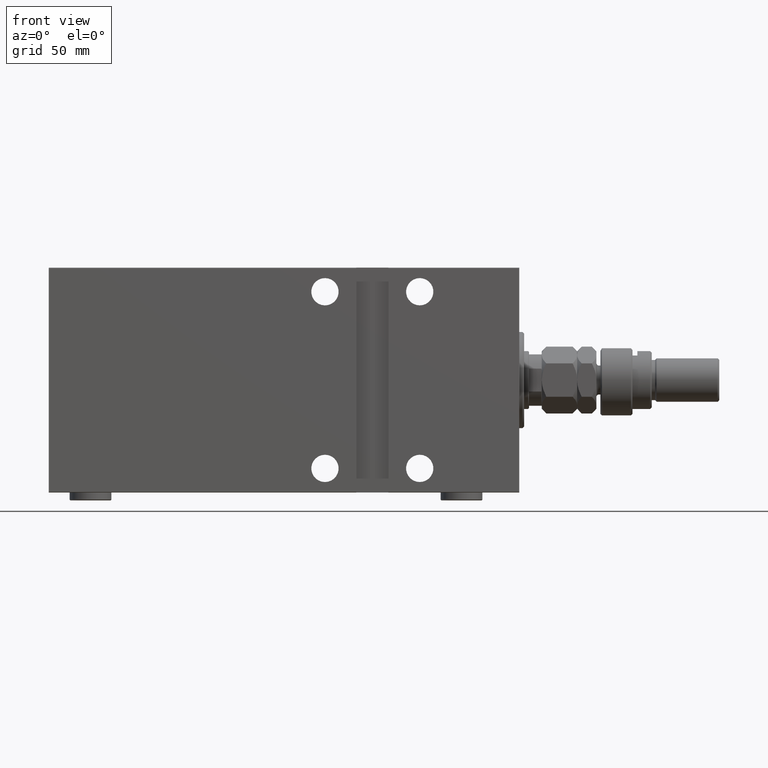
[diagram: clean part render]
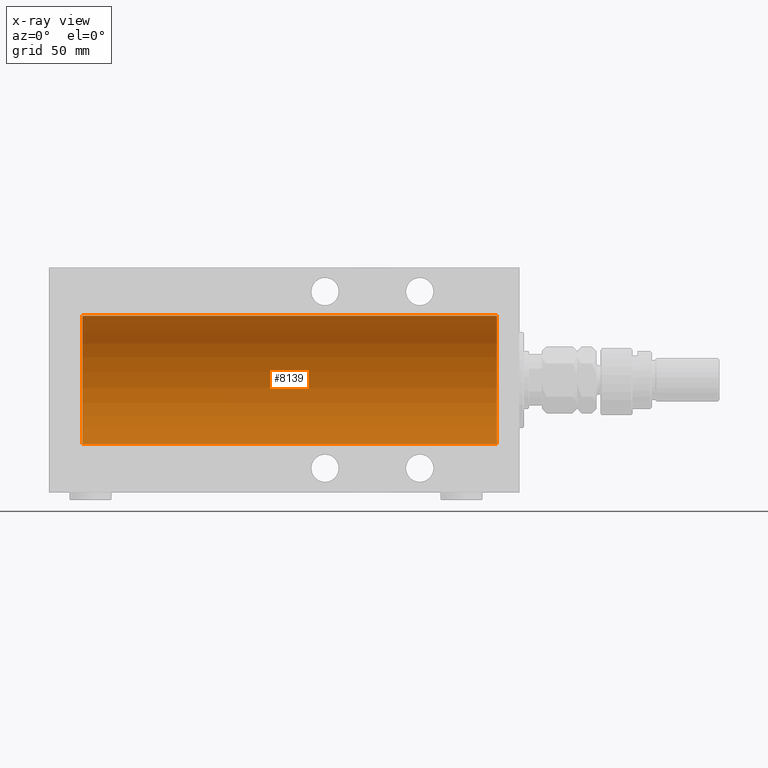
[diagram: x-ray — body ghosted, one internal face saturated and labeled with its STEP entity id]
A machine part, front view, then the same camera in x-ray: the body is ghosted and one INTERNAL B-rep face — a face not visible from any outside direction — is saturated and labeled: STEP entity #8139.
In plain terms, the highlighted cylindrical surface (partial cylindrical patch) has radius 40 mm, axis along (1, 0, -0).
Its self-contained STEP definition (entity closure, byte-faithful):
#153 = VECTOR ( 'NONE', #33385, 1000.000000000000000 ) ;
#2951 = CARTESIAN_POINT ( 'NONE',  ( 14.00000000000001243, 0.000000000000000000, 40.00000000000000000 ) ) ;
#3325 = CARTESIAN_POINT ( 'NONE',  ( 272.0000000000000000, 0.000000000000000000, 40.00000000000000000 ) ) ;
#3790 = LINE ( 'NONE', #24564, #16537 ) ;
#4294 = EDGE_CURVE ( 'NONE', #40835, #44051, #22342, .T. ) ;
#4381 = DIRECTION ( 'NONE',  ( 0.000000000000000000, 0.000000000000000000, 1.000000000000000000 ) ) ;
#4382 = DIRECTION ( 'NONE',  ( -1.000000000000000000, 0.000000000000000000, 0.000000000000000000 ) ) ;
#5306 = CARTESIAN_POINT ( 'NONE',  ( 272.0000000000000000, 0.000000000000000000, 0.000000000000000000 ) ) ;
#6998 = DIRECTION ( 'NONE',  ( -1.000000000000000000, -0.000000000000000000, -0.000000000000000000 ) ) ;
#7282 = AXIS2_PLACEMENT_3D ( 'NONE', #5306, #4382, #8162 ) ;
#8032 = AXIS2_PLACEMENT_3D ( 'NONE', #22318, #36682, #4381 ) ;
#8139 = ADVANCED_FACE ( 'NONE', ( #45648 ), #13359, .F. ) ;
#8162 = DIRECTION ( 'NONE',  ( 0.000000000000000000, 0.000000000000000000, 1.000000000000000000 ) ) ;
#11110 = DIRECTION ( 'NONE',  ( -1.000000000000000000, -0.000000000000000000, -0.000000000000000000 ) ) ;
#11478 = LINE ( 'NONE', #40701, #153 ) ;
#13359 = CYLINDRICAL_SURFACE ( 'NONE', #45736, 40.00000000000000000 ) ;
#16537 = VECTOR ( 'NONE', #11110, 1000.000000000000000 ) ;
#17063 = EDGE_CURVE ( 'NONE', #33699, #44051, #3790, .T. ) ;
#18701 = ORIENTED_EDGE ( 'NONE', *, *, #40450, .F. ) ;
#19214 = VERTEX_POINT ( 'NONE', #25156 ) ;
#22318 = CARTESIAN_POINT ( 'NONE',  ( 14.00000000000001243, 0.000000000000000000, 0.000000000000000000 ) ) ;
#22342 = CIRCLE ( 'NONE', #8032, 40.00000000000000000 ) ;
#24105 = CARTESIAN_POINT ( 'NONE',  ( 14.00000000000001243, 4.898587196589413026E-15, -40.00000000000000000 ) ) ;
#24564 = CARTESIAN_POINT ( 'NONE',  ( 272.0000000000000000, 0.000000000000000000, 40.00000000000000000 ) ) ;
#24667 = EDGE_CURVE ( 'NONE', #19214, #40835, #11478, .T. ) ;
#25156 = CARTESIAN_POINT ( 'NONE',  ( 272.0000000000000000, 4.898587196589413026E-15, -40.00000000000000000 ) ) ;
#26714 = ORIENTED_EDGE ( 'NONE', *, *, #24667, .T. ) ;
#27591 = CIRCLE ( 'NONE', #7282, 40.00000000000000000 ) ;
#27754 = DIRECTION ( 'NONE',  ( 0.000000000000000000, 0.000000000000000000, 1.000000000000000000 ) ) ;
#31264 = EDGE_LOOP ( 'NONE', ( #18701, #26714, #34556, #45466 ) ) ;
#33385 = DIRECTION ( 'NONE',  ( -1.000000000000000000, -0.000000000000000000, -0.000000000000000000 ) ) ;
#33699 = VERTEX_POINT ( 'NONE', #3325 ) ;
#34556 = ORIENTED_EDGE ( 'NONE', *, *, #4294, .T. ) ;
#36682 = DIRECTION ( 'NONE',  ( -1.000000000000000000, 0.000000000000000000, 0.000000000000000000 ) ) ;
#40450 = EDGE_CURVE ( 'NONE', #19214, #33699, #27591, .T. ) ;
#40701 = CARTESIAN_POINT ( 'NONE',  ( 272.0000000000000000, 4.898587196589413026E-15, -40.00000000000000000 ) ) ;
#40835 = VERTEX_POINT ( 'NONE', #24105 ) ;
#44051 = VERTEX_POINT ( 'NONE', #2951 ) ;
#45466 = ORIENTED_EDGE ( 'NONE', *, *, #17063, .F. ) ;
#45648 = FACE_OUTER_BOUND ( 'NONE', #31264, .T. ) ;
#45736 = AXIS2_PLACEMENT_3D ( 'NONE', #46600, #6998, #27754 ) ;
#46600 = CARTESIAN_POINT ( 'NONE',  ( 272.0000000000000000, 0.000000000000000000, 0.000000000000000000 ) ) ;